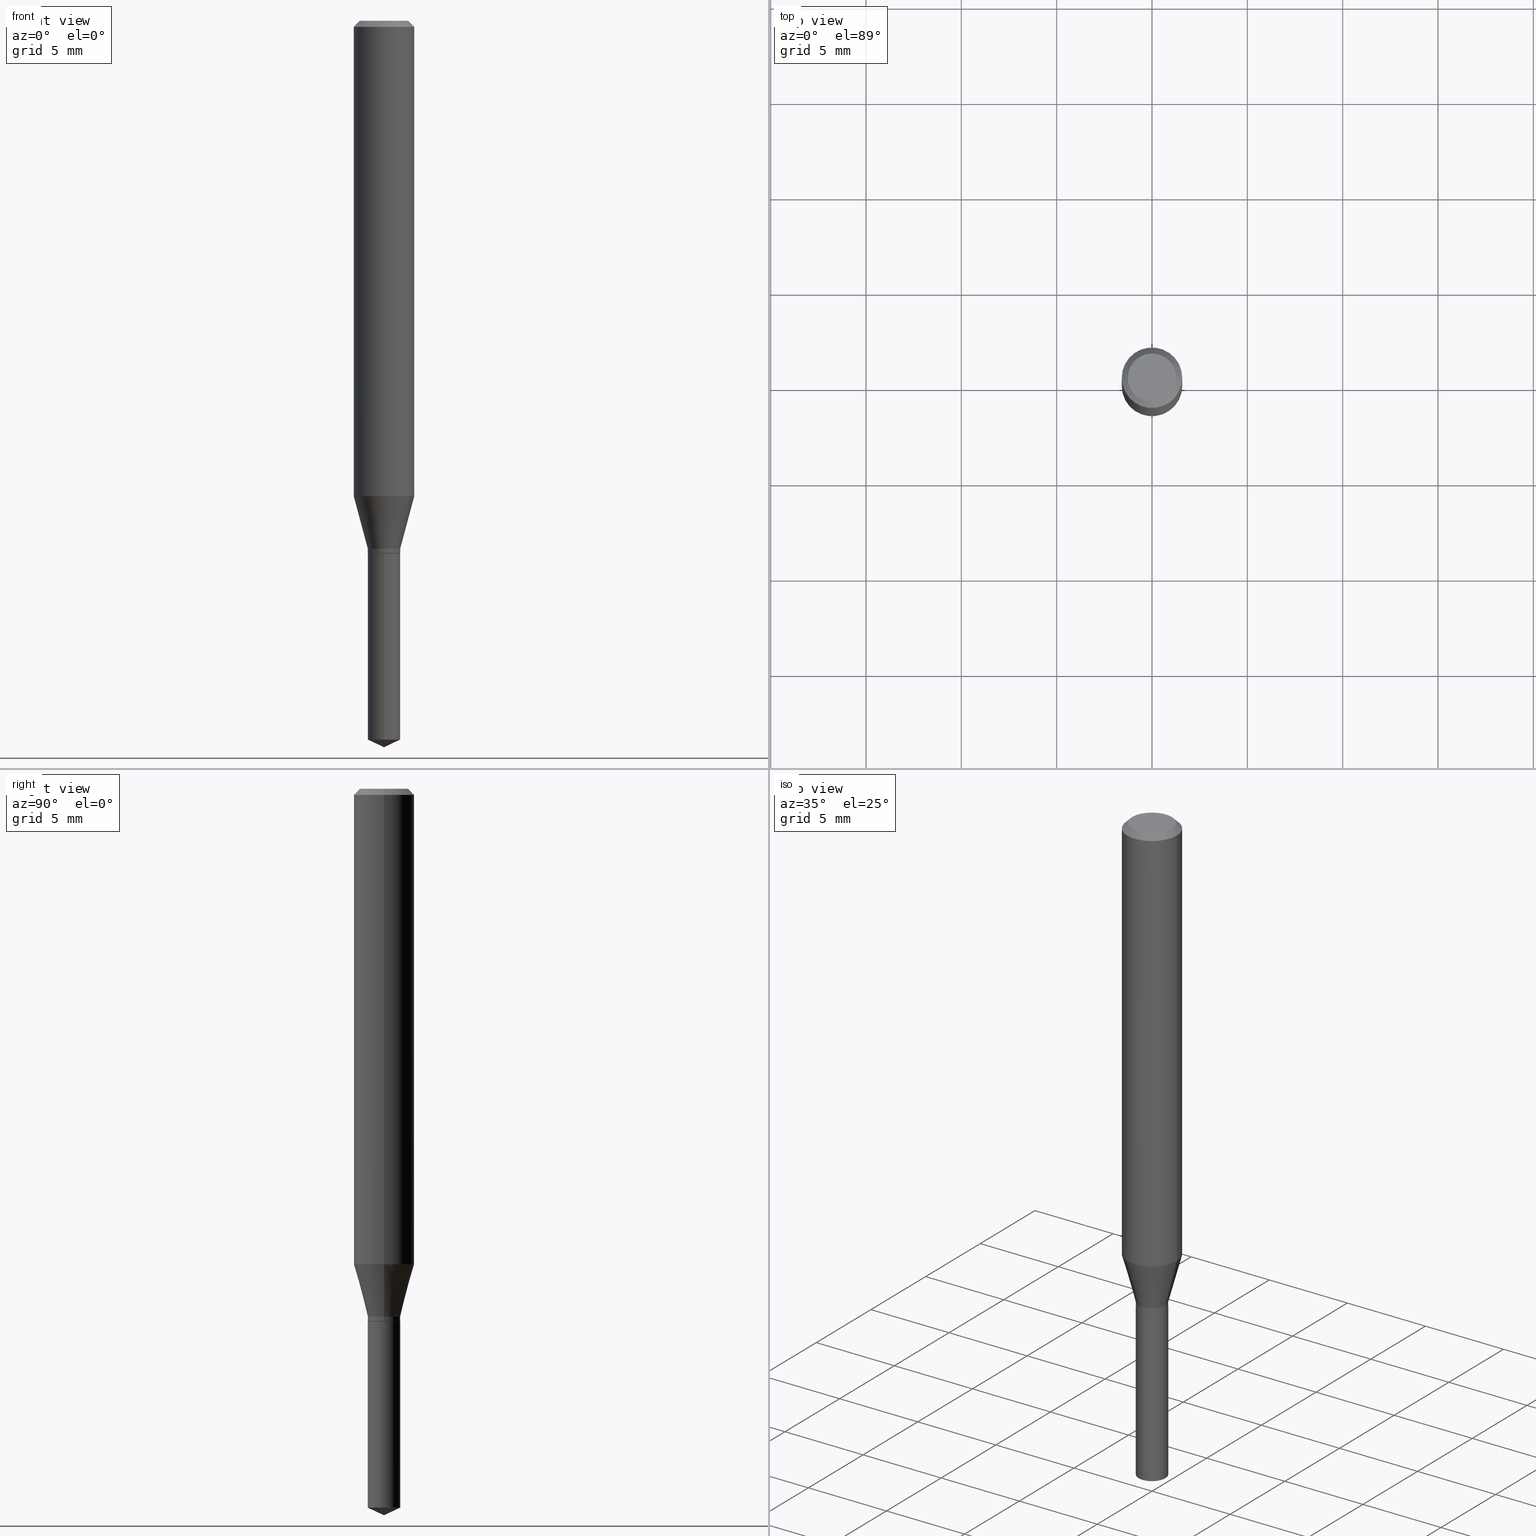
[diagram: canonical four-view strip — front | top / right | iso, engineering-drawing reading convention]
A machine part, canonical four-view strip (front | top / right | iso — engineering-drawing reading convention). The complete STEP part file that produces these views, byte-faithful:
ISO-10303-21;
HEADER;
FILE_DESCRIPTION (( 'STEP AP203' ),
    '1' );
FILE_NAME ('07178.STEP',
    '2024-04-23T19:54:00',
    ( '' ),
    ( '' ),
    'SwSTEP 2.0',
    'SolidWorks 2023',
    '' );
FILE_SCHEMA (( 'CONFIG_CONTROL_DESIGN' ));
ENDSEC;

DATA;
#1 = EDGE_LOOP ( 'NONE', ( #47, #376, #487, #473 ) ) ;
#2 = EDGE_CURVE ( 'NONE', #195, #46, #313, .T. ) ;
#3 = CYLINDRICAL_SURFACE ( 'NONE', #393, 0.03350000000000000200 ) ;
#4 = VERTEX_POINT ( 'NONE', #91 ) ;
#5 = ORIENTED_EDGE ( 'NONE', *, *, #309, .F. ) ;
#6 = ORIENTED_EDGE ( 'NONE', *, *, #31, .T. ) ;
#7 = CARTESIAN_POINT ( 'NONE',  ( 2.690015686803650369E-29, -3.840629472727460101E-15, -1.100000000000000089 ) ) ;
#8 = ORIENTED_EDGE ( 'NONE', *, *, #449, .T. ) ;
#9 = CARTESIAN_POINT ( 'NONE',  ( 3.629975224772868872E-29, -5.182718552888700756E-15, -1.484378693451807507 ) ) ;
#10 = EDGE_LOOP ( 'NONE', ( #93, #8, #191, #416 ) ) ;
#11 = DIRECTION ( 'NONE',  ( 2.445468806185136597E-29, -3.491481338843145583E-15, -1.000000000000000000 ) ) ;
#12 = CARTESIAN_POINT ( 'NONE',  ( 2.665316451861180599E-29, -3.805365511205144152E-15, -1.089900000000000091 ) ) ;
#13 = DIRECTION ( 'NONE',  ( 1.000000000000000000, -6.982962677686258822E-15, 0.000000000000000000 ) ) ;
#14 = AXIS2_PLACEMENT_3D ( 'NONE', #165, #271, #427 ) ;
#15 = AXIS2_PLACEMENT_3D ( 'NONE', #36, #28, #178 ) ;
#16 = ORIENTED_EDGE ( 'NONE', *, *, #316, .T. ) ;
#17 = CARTESIAN_POINT ( 'NONE',  ( 3.056836007731440977E-31, -4.364351673553961068E-17, -0.01250000000000008223 ) ) ;
#18 = CARTESIAN_POINT ( 'NONE',  ( 2.380318164796604470E-16, 0.03349999999999615785, -1.100000000000000089 ) ) ;
#19 = CARTESIAN_POINT ( 'NONE',  ( 2.690015686803650369E-29, -3.840629472727460101E-15, -1.100000000000000089 ) ) ;
#20 = AXIS2_PLACEMENT_3D ( 'NONE', #435, #49, #130 ) ;
#21 = CIRCLE ( 'NONE', #97, 0.03350000000000000200 ) ;
#22 = LINE ( 'NONE', #248, #59 ) ;
#23 = VERTEX_POINT ( 'NONE', #307 ) ;
#24 = ORIENTED_EDGE ( 'NONE', *, *, #462, .F. ) ;
#25 = CARTESIAN_POINT ( 'NONE',  ( 0.03300000000000000155, -4.071067241091106461E-15, -1.100000000000000089 ) ) ;
#26 = FACE_OUTER_BOUND ( 'NONE', #377, .T. ) ;
#27 = AXIS2_PLACEMENT_3D ( 'NONE', #408, #221, #336 ) ;
#28 = DIRECTION ( 'NONE',  ( 0.000000000000000000, 0.000000000000000000, 1.000000000000000000 ) ) ;
#29 = CC_DESIGN_SECURITY_CLASSIFICATION ( #106, ( #249 ) ) ;
#30 = CIRCLE ( 'NONE', #444, 0.03350000000000000200 ) ;
#31 = EDGE_CURVE ( 'NONE', #441, #135, #279, .T. ) ;
#32 = CARTESIAN_POINT ( 'NONE',  ( 0.000000000000000000, 0.000000000000000000, 0.000000000000000000 ) ) ;
#33 = DIRECTION ( 'NONE',  ( -2.445468806185136597E-29, 3.491481338843145583E-15, 1.000000000000000000 ) ) ;
#34 = APPLICATION_PROTOCOL_DEFINITION ( 'international standard', 'config_control_design', 1994, #365 ) ;
#35 = ORIENTED_EDGE ( 'NONE', *, *, #398, .F. ) ;
#36 = CARTESIAN_POINT ( 'NONE',  ( 0.000000000000000000, 0.000000000000000000, 0.000000000000000000 ) ) ;
#37 = MANIFOLD_SOLID_BREP ( 'Body-Move/Copy2[1]', #39 ) ;
#38 = ORIENTED_EDGE ( 'NONE', *, *, #356, .F. ) ;
#39 = CLOSED_SHELL ( 'NONE', ( #371, #281, #63, #242, #139 ) ) ;
#40 = CARTESIAN_POINT ( 'NONE',  ( -0.03350000000000000200, -3.567333694725510772E-15, -1.089900000000000091 ) ) ;
#41 = CC_DESIGN_DATE_AND_TIME_ASSIGNMENT ( #338, #381, ( #90 ) ) ;
#42 = ORIENTED_EDGE ( 'NONE', *, *, #309, .T. ) ;
#43 = CALENDAR_DATE ( 2024, 23, 4 ) ;
#44 = ORIENTED_EDGE ( 'NONE', *, *, #48, .T. ) ;
#45 = FACE_OUTER_BOUND ( 'NONE', #10, .T. ) ;
#46 = VERTEX_POINT ( 'NONE', #463 ) ;
#47 = ORIENTED_EDGE ( 'NONE', *, *, #453, .F. ) ;
#48 = EDGE_CURVE ( 'NONE', #380, #296, #99, .T. ) ;
#49 = DIRECTION ( 'NONE',  ( -2.445468806185136597E-29, 3.491481338843145583E-15, 1.000000000000000000 ) ) ;
#50 = AXIS2_PLACEMENT_3D ( 'NONE', #200, #92, #13 ) ;
#51 = PERSON_AND_ORGANIZATION_ROLE ( 'classification_officer' ) ;
#52 = DIRECTION ( 'NONE',  ( -2.445399690415121530E-29, 3.491580316559632610E-15, 1.000000000000000000 ) ) ;
#53 = CARTESIAN_POINT ( 'NONE',  ( -0.04999999999999999584, 3.709698922520826725E-16, -1.592040838894077649E-18 ) ) ;
#54 = CARTESIAN_POINT ( 'NONE',  ( -0.03300000000000000155, -3.603501142752515631E-15, -1.100000000000000089 ) ) ;
#55 = DIRECTION ( 'NONE',  ( 1.000000000000000000, -6.982962677686259611E-15, 0.000000000000000000 ) ) ;
#56 = EDGE_CURVE ( 'NONE', #46, #195, #64, .T. ) ;
#57 = ORIENTED_EDGE ( 'NONE', *, *, #161, .F. ) ;
#58 = FACE_OUTER_BOUND ( 'NONE', #318, .T. ) ;
#59 = VECTOR ( 'NONE', #375, 39.37007874015748854 ) ;
#60 = APPROVAL_PERSON_ORGANIZATION ( #89, #269, #162 ) ;
#61 = DIRECTION ( 'NONE',  ( -2.445399690415121530E-29, 3.491580316559632610E-15, 1.000000000000000000 ) ) ;
#62 = ADVANCED_FACE ( 'NONE', ( #267 ), #422, .F. ) ;
#63 = ADVANCED_FACE ( 'NONE', ( #431 ), #343, .T. ) ;
#64 = CIRCLE ( 'NONE', #489, 0.03350000000000000200 ) ;
#65 = AXIS2_PLACEMENT_3D ( 'NONE', #215, #61, #401 ) ;
#66 = DIRECTION ( 'NONE',  ( -2.445399690415121810E-29, 3.491580316559632610E-15, 1.000000000000000000 ) ) ;
#67 = DIRECTION ( 'NONE',  ( -2.445468806185136597E-29, 3.491481338843145583E-15, 1.000000000000000000 ) ) ;
#68 = EDGE_LOOP ( 'NONE', ( #24, #145, #391, #38 ) ) ;
#69 = FACE_OUTER_BOUND ( 'NONE', #1, .T. ) ;
#70 = CLOSED_SHELL ( 'NONE', ( #367, #352, #256, #173, #243, #211, #437, #210, #193, #62, #288, #276 ) ) ;
#71 = DIRECTION ( 'NONE',  ( 1.000000000000000000, -6.982962677686265922E-15, 4.875957971899673662E-29 ) ) ;
#72 = DIRECTION ( 'NONE',  ( 6.982962677686265922E-15, 1.000000000000000000, -3.491580316559632610E-15 ) ) ;
#73 = CONICAL_SURFACE ( 'NONE', #353, 0.03300000000000000155, 0.7853981633974141952 ) ;
#74 = DIRECTION ( 'NONE',  ( 1.000000000000000000, -6.982962677686267499E-15, 4.876176775795936353E-29 ) ) ;
#75 = VERTEX_POINT ( 'NONE', #311 ) ;
#76 = CYLINDRICAL_SURFACE ( 'NONE', #153, 0.03350000000000000200 ) ;
#77 = ORIENTED_EDGE ( 'NONE', *, *, #157, .T. ) ;
#78 = APPROVAL_ROLE ( '' ) ;
#79 = PERSON ( 'UNSPECIFIED', 'UNSPECIFIED', 'UNSPECIFIED', ('UNSPECIFIED'), ('UNSPECIFIED'), ('UNSPECIFIED') ) ;
#80 = DIRECTION ( 'NONE',  ( 1.000000000000000000, -6.982962677686259611E-15, 0.000000000000000000 ) ) ;
#81 = ORIENTED_EDGE ( 'NONE', *, *, #462, .T. ) ;
#82 = CONICAL_SURFACE ( 'NONE', #384, 0.03350000000000000200, 0.2617993877991499074 ) ;
#83 = AXIS2_PLACEMENT_3D ( 'NONE', #17, #346, #208 ) ;
#84 = ORIENTED_EDGE ( 'NONE', *, *, #136, .T. ) ;
#85 = APPROVAL_DATE_TIME ( #254, #164 ) ;
#86 = ORIENTED_EDGE ( 'NONE', *, *, #48, .F. ) ;
#87 = CARTESIAN_POINT ( 'NONE',  ( 1.946643104841063088E-47, -2.779290439833033990E-33, -7.960204194457798443E-19 ) ) ;
#88 = DIRECTION ( 'NONE',  ( -2.445399690415121530E-29, 3.491580316559632610E-15, 1.000000000000000000 ) ) ;
#89 = PERSON_AND_ORGANIZATION ( #79, #470 ) ;
#90 = PRODUCT_DEFINITION ( 'UNKNOWN', '', #249, #255 ) ;
#91 = CARTESIAN_POINT ( 'NONE',  ( 0.06250000000000012490, -3.863919491803540319E-15, -0.9816705265805023561 ) ) ;
#92 = DIRECTION ( 'NONE',  ( -2.445468806185136597E-29, 3.491481338843145583E-15, 1.000000000000000000 ) ) ;
#93 = ORIENTED_EDGE ( 'NONE', *, *, #349, .T. ) ;
#94 = DIRECTION ( 'NONE',  ( 1.000000000000000000, -6.982962677686266711E-15, 0.000000000000000000 ) ) ;
#95 = CARTESIAN_POINT ( 'NONE',  ( 2.665316451861180599E-29, -3.805365511205144152E-15, -1.089900000000000091 ) ) ;
#96 = FACE_OUTER_BOUND ( 'NONE', #341, .T. ) ;
#97 = AXIS2_PLACEMENT_3D ( 'NONE', #387, #206, #167 ) ;
#98 = EDGE_CURVE ( 'NONE', #224, #122, #357, .T. ) ;
#99 = CIRCLE ( 'NONE', #433, 0.04999999999999999584 ) ;
#100 = AXIS2_PLACEMENT_3D ( 'NONE', #237, #88, #392 ) ;
#101 =( CONVERSION_BASED_UNIT ( 'INCH', #297 ) LENGTH_UNIT ( ) NAMED_UNIT ( #321 ) );
#102 = CYLINDRICAL_SURFACE ( 'NONE', #362, 0.06250000000000005551 ) ;
#103 = CC_DESIGN_PERSON_AND_ORGANIZATION_ASSIGNMENT ( #186, #488, ( #90 ) ) ;
#104 = VECTOR ( 'NONE', #404, 39.37007874015748143 ) ;
#105 = CALENDAR_DATE ( 2024, 23, 4 ) ;
#106 = SECURITY_CLASSIFICATION ( '', '', #114 ) ;
#107 = EDGE_CURVE ( 'NONE', #289, #465, #203, .T. ) ;
#108 = DIRECTION ( 'NONE',  ( -2.445468806185136597E-29, 3.491481338843145583E-15, 1.000000000000000000 ) ) ;
#109 = ORIENTED_EDGE ( 'NONE', *, *, #453, .T. ) ;
#110 = APPROVAL_DATE_TIME ( #202, #269 ) ;
#111 = CC_DESIGN_PERSON_AND_ORGANIZATION_ASSIGNMENT ( #247, #405, ( #417 ) ) ;
#112 = LINE ( 'NONE', #40, #476 ) ;
#113 = ORIENTED_EDGE ( 'NONE', *, *, #2, .T. ) ;
#114 = SECURITY_CLASSIFICATION_LEVEL ( 'unclassified' ) ;
#115 = DIRECTION ( 'NONE',  ( 1.000000000000000000, -6.982962677686266711E-15, 4.876176775795935232E-29 ) ) ;
#116 = ORIENTED_EDGE ( 'NONE', *, *, #118, .T. ) ;
#117 = LOCAL_TIME ( 15, 54, 0.000000000000000000, #412 ) ;
#118 = EDGE_CURVE ( 'NONE', #480, #4, #144, .T. ) ;
#119 = ORIENTED_EDGE ( 'NONE', *, *, #56, .T. ) ;
#120 = CARTESIAN_POINT ( 'NONE',  ( 0.06250000000000000000, -4.724246415962602840E-16, -0.01250000000000008223 ) ) ;
#121 = CC_DESIGN_DATE_AND_TIME_ASSIGNMENT ( #189, #152, ( #106 ) ) ;
#122 = VERTEX_POINT ( 'NONE', #388 ) ;
#123 = DIRECTION ( 'NONE',  ( 1.000000000000000000, -6.982962677686259611E-15, 0.000000000000000000 ) ) ;
#124 = CARTESIAN_POINT ( 'NONE',  ( 3.056836007731440977E-31, -4.364351673553961068E-17, -0.01250000000000008223 ) ) ;
#125 = DIRECTION ( 'NONE',  ( 6.439704144417007476E-15, 0.9063077870366490485, 0.4226182617407009956 ) ) ;
#126 = AXIS2_PLACEMENT_3D ( 'NONE', #386, #52, #382 ) ;
#127 = CYLINDRICAL_SURFACE ( 'NONE', #344, 0.03350000000000000200 ) ;
#128 =( GEOMETRIC_REPRESENTATION_CONTEXT ( 3 ) GLOBAL_UNCERTAINTY_ASSIGNED_CONTEXT ( ( #150 ) ) GLOBAL_UNIT_ASSIGNED_CONTEXT ( ( #101, #485, #322 ) ) REPRESENTATION_CONTEXT ( 'NONE', 'WORKASPACE' ) );
#129 = CARTESIAN_POINT ( 'NONE',  ( 0.03350000000000000200, -4.039294760907634307E-15, -1.089900000000000091 ) ) ;
#130 = DIRECTION ( 'NONE',  ( 1.000000000000000000, -6.982962677686267499E-15, 4.876176775795936353E-29 ) ) ;
#131 = DIRECTION ( 'NONE',  ( -2.445468806185136597E-29, 3.491481338843145583E-15, 1.000000000000000000 ) ) ;
#132 = PLANE ( 'NONE',  #458 ) ;
#133 = CARTESIAN_POINT ( 'NONE',  ( -2.339292497024630386E-16, -0.03350000000000384615, -1.099999999999999867 ) ) ;
#134 = CONICAL_SURFACE ( 'NONE', #154, 0.03350000000000000200, 0.2617993877991499074 ) ;
#135 = VERTEX_POINT ( 'NONE', #54 ) ;
#136 = EDGE_CURVE ( 'NONE', #195, #4, #205, .T. ) ;
#137 = VECTOR ( 'NONE', #274, 39.37007874015748854 ) ;
#138 = CONICAL_SURFACE ( 'NONE', #50, 0.03300000000000000155, 0.7853981633974141952 ) ;
#139 = ADVANCED_FACE ( 'NONE', ( #354 ), #236, .F. ) ;
#140 = DIRECTION ( 'NONE',  ( -6.982962677686266711E-15, -1.000000000000000000, 0.000000000000000000 ) ) ;
#141 = CARTESIAN_POINT ( 'NONE',  ( 0.03350000000000000200, -4.072812981760527965E-15, -1.099499999999999922 ) ) ;
#142 = CARTESIAN_POINT ( 'NONE',  ( 0.000000000000000000, 0.000000000000000000, 0.000000000000000000 ) ) ;
#143 = COORDINATED_UNIVERSAL_TIME_OFFSET ( 5, 0, .BEHIND. ) ;
#144 = CIRCLE ( 'NONE', #14, 0.06250000000000012490 ) ;
#145 = ORIENTED_EDGE ( 'NONE', *, *, #223, .T. ) ;
#146 = COORDINATED_UNIVERSAL_TIME_OFFSET ( 5, 0, .BEHIND. ) ;
#147 = ORIENTED_EDGE ( 'NONE', *, *, #107, .F. ) ;
#148 = CARTESIAN_POINT ( 'NONE',  ( 2.400644650703955588E-29, -3.427484324448148255E-15, -0.9816705265805023561 ) ) ;
#149 = ORIENTED_EDGE ( 'NONE', *, *, #398, .T. ) ;
#150 = UNCERTAINTY_MEASURE_WITH_UNIT (LENGTH_MEASURE( 1.000000000000000082E-05 ), #101, 'distance_accuracy_value', 'NONE');
#151 = ORIENTED_EDGE ( 'NONE', *, *, #31, .F. ) ;
#152 = DATE_TIME_ROLE ( 'classification_date' ) ;
#153 = AXIS2_PLACEMENT_3D ( 'NONE', #180, #446, #194 ) ;
#154 = AXIS2_PLACEMENT_3D ( 'NONE', #95, #396, #245 ) ;
#155 = DIRECTION ( 'NONE',  ( -1.000000000000000000, 6.982962677686265922E-15, -4.876176775795935793E-29 ) ) ;
#156 = LINE ( 'NONE', #468, #168 ) ;
#157 = EDGE_CURVE ( 'NONE', #289, #259, #22, .T. ) ;
#158 = ORIENTED_EDGE ( 'NONE', *, *, #220, .T. ) ;
#159 = ORIENTED_EDGE ( 'NONE', *, *, #390, .F. ) ;
#160 = CARTESIAN_POINT ( 'NONE',  ( 2.690015686803650369E-29, -3.840629472727460101E-15, -1.100000000000000089 ) ) ;
#161 = EDGE_CURVE ( 'NONE', #46, #480, #112, .T. ) ;
#162 = APPROVAL_ROLE ( '' ) ;
#163 = FACE_OUTER_BOUND ( 'NONE', #225, .T. ) ;
#164 = APPROVAL ( #340, 'UNSPECIFIED' ) ;
#165 = CARTESIAN_POINT ( 'NONE',  ( 2.400644650703955588E-29, -3.427484324448148255E-15, -0.9816705265805023561 ) ) ;
#166 = AXIS2_PLACEMENT_3D ( 'NONE', #87, #232, #155 ) ;
#167 = DIRECTION ( 'NONE',  ( 1.000000000000000000, -6.982962677686259611E-15, 0.000000000000000000 ) ) ;
#168 = VECTOR ( 'NONE', #196, 39.37007874015748143 ) ;
#169 = CARTESIAN_POINT ( 'NONE',  ( 0.03300000000000000155, -4.071067241091106461E-15, -1.100000000000000089 ) ) ;
#170 = DIRECTION ( 'NONE',  ( -2.445399690415121810E-29, 3.491580316559632610E-15, 1.000000000000000000 ) ) ;
#171 = AXIS2_PLACEMENT_3D ( 'NONE', #32, #364, #179 ) ;
#172 = EDGE_LOOP ( 'NONE', ( #415, #478, #301, #5 ) ) ;
#173 = ADVANCED_FACE ( 'NONE', ( #440 ), #82, .T. ) ;
#174 = LINE ( 'NONE', #475, #231 ) ;
#175 = CIRCLE ( 'NONE', #456, 0.03300000000000000155 ) ;
#176 = CIRCLE ( 'NONE', #230, 0.03350000000000000200 ) ;
#177 = LOCAL_TIME ( 15, 54, 0.000000000000000000, #226 ) ;
#178 = DIRECTION ( 'NONE',  ( 1.000000000000000000, 0.000000000000000000, 0.000000000000000000 ) ) ;
#179 = DIRECTION ( 'NONE',  ( 1.000000000000000000, -6.982962677686266711E-15, 4.876176775795935232E-29 ) ) ;
#180 = CARTESIAN_POINT ( 'NONE',  ( 2.690015686803650369E-29, -3.840629472727460101E-15, -1.100000000000000089 ) ) ;
#181 = APPROVAL_STATUS ( 'not_yet_approved' ) ;
#182 = EDGE_LOOP ( 'NONE', ( #113, #185, #277, #253 ) ) ;
#183 = FACE_OUTER_BOUND ( 'NONE', #172, .T. ) ;
#184 = CARTESIAN_POINT ( 'NONE',  ( -0.06250000000000005551, 4.440892098500630106E-16, -3.074334431409318916E-30 ) ) ;
#185 = ORIENTED_EDGE ( 'NONE', *, *, #161, .T. ) ;
#186 = PERSON_AND_ORGANIZATION ( #79, #470 ) ;
#187 = AXIS2_PLACEMENT_3D ( 'NONE', #148, #294, #482 ) ;
#188 = ORIENTED_EDGE ( 'NONE', *, *, #423, .F. ) ;
#189 = DATE_AND_TIME ( #310, #295 ) ;
#190 = CARTESIAN_POINT ( 'NONE',  ( 2.665316451861180599E-29, -3.805365511205144152E-15, -1.089900000000000091 ) ) ;
#191 = ORIENTED_EDGE ( 'NONE', *, *, #479, .F. ) ;
#192 = MANIFOLD_SOLID_BREP ( 'Body-Move/Copy2[2]', #70 ) ;
#193 = ADVANCED_FACE ( 'NONE', ( #26 ), #443, .T. ) ;
#194 = DIRECTION ( 'NONE',  ( -6.982962677686266711E-15, -1.000000000000000000, 4.077385065170542141E-15 ) ) ;
#195 = VERTEX_POINT ( 'NONE', #366 ) ;
#196 = DIRECTION ( 'NONE',  ( -0.7071067811865453523, 2.468850131082234184E-15, -0.7071067811865496822 ) ) ;
#197 = ORIENTED_EDGE ( 'NONE', *, *, #449, .F. ) ;
#198 = LOCAL_TIME ( 15, 54, 0.000000000000000000, #143 ) ;
#199 = DIRECTION ( 'NONE',  ( 1.000000000000000000, -6.982962677686259611E-15, 0.000000000000000000 ) ) ;
#200 = CARTESIAN_POINT ( 'NONE',  ( 2.690015686803650369E-29, -3.840629472727460101E-15, -1.100000000000000089 ) ) ;
#201 = EDGE_CURVE ( 'NONE', #4, #480, #413, .T. ) ;
#202 = DATE_AND_TIME ( #299, #117 ) ;
#203 = LINE ( 'NONE', #347, #399 ) ;
#204 = CARTESIAN_POINT ( 'NONE',  ( 0.06250000000000005551, -4.364351673553921131E-16, 3.047610484872463023E-30 ) ) ;
#205 = LINE ( 'NONE', #129, #137 ) ;
#206 = DIRECTION ( 'NONE',  ( -2.445468806185136597E-29, 3.491481338843145583E-15, 1.000000000000000000 ) ) ;
#207 = DIRECTION ( 'NONE',  ( -2.445468806185136597E-29, 3.491481338843145583E-15, 1.000000000000000000 ) ) ;
#208 = DIRECTION ( 'NONE',  ( 1.000000000000000000, -6.982962677686266711E-15, 0.000000000000000000 ) ) ;
#209 = CIRCLE ( 'NONE', #280, 0.03350000000000000200 ) ;
#210 = ADVANCED_FACE ( 'NONE', ( #370 ), #102, .T. ) ;
#211 = ADVANCED_FACE ( 'NONE', ( #69 ), #3, .T. ) ;
#212 = VECTOR ( 'NONE', #351, 39.37007874015748143 ) ;
#213 = EDGE_CURVE ( 'NONE', #480, #218, #300, .T. ) ;
#214 = FACE_OUTER_BOUND ( 'NONE', #282, .T. ) ;
#215 = CARTESIAN_POINT ( 'NONE',  ( 2.690015686803650369E-29, -3.840629472727460101E-15, -1.100000000000000089 ) ) ;
#216 = CARTESIAN_POINT ( 'NONE',  ( 2.380318164796699134E-16, 0.03349999999999615785, -1.100000000000000089 ) ) ;
#217 = VECTOR ( 'NONE', #66, 39.37007874015748143 ) ;
#218 = VERTEX_POINT ( 'NONE', #252 ) ;
#219 = DATE_AND_TIME ( #105, #198 ) ;
#220 = EDGE_CURVE ( 'NONE', #465, #259, #176, .T. ) ;
#221 = DIRECTION ( 'NONE',  ( 2.445468806185136597E-29, -3.491481338843145583E-15, -1.000000000000000000 ) ) ;
#222 = ORIENTED_EDGE ( 'NONE', *, *, #330, .T. ) ;
#223 = EDGE_CURVE ( 'NONE', #135, #441, #175, .T. ) ;
#224 = VERTEX_POINT ( 'NONE', #216 ) ;
#225 = EDGE_LOOP ( 'NONE', ( #6, #81, #35, #454 ) ) ;
#226 = COORDINATED_UNIVERSAL_TIME_OFFSET ( 5, 0, .BEHIND. ) ;
#227 = ORIENTED_EDGE ( 'NONE', *, *, #213, .F. ) ;
#228 = DIRECTION ( 'NONE',  ( 1.000000000000000000, -6.982962677686258822E-15, 0.000000000000000000 ) ) ;
#229 = PERSON_AND_ORGANIZATION ( #79, #470 ) ;
#230 = AXIS2_PLACEMENT_3D ( 'NONE', #409, #329, #140 ) ;
#231 = VECTOR ( 'NONE', #448, 39.37007874015748143 ) ;
#232 = DIRECTION ( 'NONE',  ( 2.438088387897960049E-29, -3.491481338843145188E-15, -1.000000000000000000 ) ) ;
#233 = DIRECTION ( 'NONE',  ( -6.982962677686266711E-15, -1.000000000000000000, 4.077385065170542141E-15 ) ) ;
#234 = CARTESIAN_POINT ( 'NONE',  ( 2.665316451861180599E-29, -3.805365511205144152E-15, -1.089900000000000091 ) ) ;
#235 = CARTESIAN_POINT ( 'NONE',  ( 2.688792952400557567E-29, -3.838883732058038598E-15, -1.099499999999999922 ) ) ;
#236 = PLANE ( 'NONE',  #425 ) ;
#237 = CARTESIAN_POINT ( 'NONE',  ( -9.260740279983036507E-28, 1.322265303911854087E-13, 37.87007874015748143 ) ) ;
#238 = CARTESIAN_POINT ( 'NONE',  ( 2.690015686803650369E-29, -3.840629472727460101E-15, -1.100000000000000089 ) ) ;
#239 = CC_DESIGN_APPROVAL ( #319, ( #90 ) ) ;
#240 =( LENGTH_UNIT ( ) NAMED_UNIT ( * ) SI_UNIT ( $, .METRE. ) );
#241 = APPROVAL_PERSON_ORGANIZATION ( #442, #319, #328 ) ;
#242 = ADVANCED_FACE ( 'NONE', ( #214 ), #76, .T. ) ;
#243 = ADVANCED_FACE ( 'NONE', ( #251 ), #286, .T. ) ;
#244 = AXIS2_PLACEMENT_3D ( 'NONE', #304, #273, #94 ) ;
#245 = DIRECTION ( 'NONE',  ( 1.000000000000000000, -6.982962677686259611E-15, 0.000000000000000000 ) ) ;
#246 = DIRECTION ( 'NONE',  ( -2.445468806185136597E-29, 3.491481338843145583E-15, 1.000000000000000000 ) ) ;
#247 = PERSON_AND_ORGANIZATION ( #79, #470 ) ;
#248 = CARTESIAN_POINT ( 'NONE',  ( 3.668099535622682155E-29, -5.237370474839448718E-15, -1.500000000000000222 ) ) ;
#249 = PRODUCT_DEFINITION_FORMATION_WITH_SPECIFIED_SOURCE ( 'ANY', '', #417, .NOT_KNOWN. ) ;
#250 = LINE ( 'NONE', #133, #217 ) ;
#251 = FACE_OUTER_BOUND ( 'NONE', #325, .T. ) ;
#252 = CARTESIAN_POINT ( 'NONE',  ( -0.06250000000000000000, -1.291474710741780109E-15, -0.01250000000000008223 ) ) ;
#253 = ORIENTED_EDGE ( 'NONE', *, *, #136, .F. ) ;
#254 = DATE_AND_TIME ( #43, #177 ) ;
#255 = DESIGN_CONTEXT ( 'detailed design', #365, 'design' ) ;
#256 = ADVANCED_FACE ( 'NONE', ( #183 ), #374, .T. ) ;
#257 = ORIENTED_EDGE ( 'NONE', *, *, #486, .F. ) ;
#258 = COORDINATED_UNIVERSAL_TIME_OFFSET ( 5, 0, .BEHIND. ) ;
#259 = VERTEX_POINT ( 'NONE', #419 ) ;
#260 = LOCAL_TIME ( 15, 54, 0.000000000000000000, #146 ) ;
#261 = ORIENTED_EDGE ( 'NONE', *, *, #98, .F. ) ;
#262 = APPROVAL_STATUS ( 'not_yet_approved' ) ;
#263 = DIRECTION ( 'NONE',  ( -2.445399690415121530E-29, 3.491580316559632610E-15, 1.000000000000000000 ) ) ;
#264 = LINE ( 'NONE', #317, #434 ) ;
#265 = EDGE_LOOP ( 'NONE', ( #227, #116, #42, #477 ) ) ;
#266 = PERSON_AND_ORGANIZATION ( #79, #470 ) ;
#267 = FACE_OUTER_BOUND ( 'NONE', #335, .T. ) ;
#268 = FACE_OUTER_BOUND ( 'NONE', #298, .T. ) ;
#269 = APPROVAL ( #262, 'UNSPECIFIED' ) ;
#270 = CONICAL_SURFACE ( 'NONE', #394, 0.06250000000000000000, 0.7853981633974452814 ) ;
#271 = DIRECTION ( 'NONE',  ( -2.445468806185136597E-29, 3.491481338843145583E-15, 1.000000000000000000 ) ) ;
#272 = ADVANCED_BREP_SHAPE_REPRESENTATION ( '07178', ( #37, #192, #15 ), #128 ) ;
#273 = DIRECTION ( 'NONE',  ( -2.445468806185136597E-29, 3.491481338843145583E-15, 1.000000000000000000 ) ) ;
#274 = DIRECTION ( 'NONE',  ( 0.2588190451025211836, 1.565188264969622559E-15, 0.9659258262890679791 ) ) ;
#275 = FACE_OUTER_BOUND ( 'NONE', #305, .T. ) ;
#276 = ADVANCED_FACE ( 'NONE', ( #432 ), #73, .T. ) ;
#277 = ORIENTED_EDGE ( 'NONE', *, *, #201, .F. ) ;
#278 = DIRECTION ( 'NONE',  ( -2.445399690415121530E-29, 3.491580316559632610E-15, 1.000000000000000000 ) ) ;
#279 = CIRCLE ( 'NONE', #284, 0.03300000000000000155 ) ;
#280 = AXIS2_PLACEMENT_3D ( 'NONE', #235, #389, #55 ) ;
#281 = ADVANCED_FACE ( 'NONE', ( #96 ), #314, .T. ) ;
#282 = EDGE_LOOP ( 'NONE', ( #197, #158, #429, #261 ) ) ;
#283 = CARTESIAN_POINT ( 'NONE',  ( -0.03300000000000000155, -3.606150369926626832E-15, -1.100000000000000089 ) ) ;
#284 = AXIS2_PLACEMENT_3D ( 'NONE', #238, #471, #395 ) ;
#285 = APPROVAL_PERSON_ORGANIZATION ( #266, #164, #78 ) ;
#286 = CYLINDRICAL_SURFACE ( 'NONE', #171, 0.03350000000000000200 ) ;
#287 = CARTESIAN_POINT ( 'NONE',  ( 2.690015686803650369E-29, -3.840629472727460101E-15, -1.100000000000000089 ) ) ;
#288 = ADVANCED_FACE ( 'NONE', ( #58 ), #132, .F. ) ;
#289 = VERTEX_POINT ( 'NONE', #460 ) ;
#290 = CARTESIAN_POINT ( 'NONE',  ( 3.893286209682126177E-47, -5.558580879666067980E-33, -1.592040838891559689E-18 ) ) ;
#291 = DIRECTION ( 'NONE',  ( 2.445399690415121250E-29, -3.491580316559632610E-15, -1.000000000000000000 ) ) ;
#292 = ORIENTED_EDGE ( 'NONE', *, *, #330, .F. ) ;
#293 = MECHANICAL_CONTEXT ( 'NONE', #420, 'mechanical' ) ;
#294 = DIRECTION ( 'NONE',  ( -2.445468806185136597E-29, 3.491481338843145583E-15, 1.000000000000000000 ) ) ;
#295 = LOCAL_TIME ( 15, 54, 0.000000000000000000, #258 ) ;
#296 = VERTEX_POINT ( 'NONE', #464 ) ;
#297 = LENGTH_MEASURE_WITH_UNIT ( LENGTH_MEASURE( 0.02539999999999999897 ), #240 );
#298 = EDGE_LOOP ( 'NONE', ( #257, #222, #302, #159 ) ) ;
#299 = CALENDAR_DATE ( 2024, 23, 4 ) ;
#300 = LINE ( 'NONE', #184, #104 ) ;
#301 = ORIENTED_EDGE ( 'NONE', *, *, #397, .F. ) ;
#302 = ORIENTED_EDGE ( 'NONE', *, *, #397, .T. ) ;
#303 = CARTESIAN_POINT ( 'NONE',  ( -9.260740279983036507E-28, 1.322265303911854087E-13, 37.87007874015748143 ) ) ;
#304 = CARTESIAN_POINT ( 'NONE',  ( 3.056836007731440977E-31, -4.364351673553961068E-17, -0.01250000000000008223 ) ) ;
#305 = EDGE_LOOP ( 'NONE', ( #57, #119, #84, #447 ) ) ;
#306 = PERSON_AND_ORGANIZATION_ROLE ( 'creator' ) ;
#307 = CARTESIAN_POINT ( 'NONE',  ( 0.06250000000000000000, -4.800786840909312308E-16, -0.01250000000000008223 ) ) ;
#308 = DIRECTION ( 'NONE',  ( -2.438088387897960049E-29, 3.491481338843145188E-15, 1.000000000000000000 ) ) ;
#309 = EDGE_CURVE ( 'NONE', #4, #23, #342, .T. ) ;
#310 = CALENDAR_DATE ( 2024, 23, 4 ) ;
#311 = CARTESIAN_POINT ( 'NONE',  ( -0.03350000000000000200, -3.584092805151957996E-15, -1.099499999999999922 ) ) ;
#312 = DIRECTION ( 'NONE',  ( -2.445399690415121530E-29, 3.491580316559632610E-15, 1.000000000000000000 ) ) ;
#313 = CIRCLE ( 'NONE', #469, 0.03350000000000000200 ) ;
#314 = CONICAL_SURFACE ( 'NONE', #100, 84.42940631927278616, 1.134464013796308901 ) ;
#315 = DIRECTION ( 'NONE',  ( -6.982962677686268288E-15, -1.000000000000000000, 3.520397390770518557E-15 ) ) ;
#316 = EDGE_CURVE ( 'NONE', #218, #23, #385, .T. ) ;
#317 = CARTESIAN_POINT ( 'NONE',  ( 0.03350000000000000200, -2.339292497024899585E-16, 1.633519219891638449E-30 ) ) ;
#318 = EDGE_LOOP ( 'NONE', ( #151, #339 ) ) ;
#319 = APPROVAL ( #181, 'UNSPECIFIED' ) ;
#320 = LINE ( 'NONE', #169, #407 ) ;
#321 = DIMENSIONAL_EXPONENTS ( 1.000000000000000000, 0.000000000000000000, 0.000000000000000000, 0.000000000000000000, 0.000000000000000000, 0.000000000000000000, 0.000000000000000000 ) ;
#322 =( NAMED_UNIT ( * ) SI_UNIT ( $, .STERADIAN. ) SOLID_ANGLE_UNIT ( ) );
#323 = CC_DESIGN_APPROVAL ( #164, ( #249 ) ) ;
#324 = CC_DESIGN_PERSON_AND_ORGANIZATION_ASSIGNMENT ( #421, #306, ( #249 ) ) ;
#325 = EDGE_LOOP ( 'NONE', ( #149, #109, #368, #188 ) ) ;
#326 = DIRECTION ( 'NONE',  ( -2.445468806185136597E-29, 3.491481338843145583E-15, 1.000000000000000000 ) ) ;
#327 = CIRCLE ( 'NONE', #65, 0.03350000000000000200 ) ;
#328 = APPROVAL_ROLE ( '' ) ;
#329 = DIRECTION ( 'NONE',  ( -2.445399690415121530E-29, 3.491580316559632610E-15, 1.000000000000000000 ) ) ;
#330 = EDGE_CURVE ( 'NONE', #296, #23, #383, .T. ) ;
#331 = ORIENTED_EDGE ( 'NONE', *, *, #98, .T. ) ;
#332 = LINE ( 'NONE', #283, #426 ) ;
#333 = CIRCLE ( 'NONE', #439, 0.04999999999999999584 ) ;
#334 = EDGE_CURVE ( 'NONE', #441, #459, #320, .T. ) ;
#335 = EDGE_LOOP ( 'NONE', ( #44, #450 ) ) ;
#336 = DIRECTION ( 'NONE',  ( -1.000000000000000000, 6.982962677686266711E-15, 0.000000000000000000 ) ) ;
#337 = ORIENTED_EDGE ( 'NONE', *, *, #220, .F. ) ;
#338 = DATE_AND_TIME ( #455, #260 ) ;
#339 = ORIENTED_EDGE ( 'NONE', *, *, #223, .F. ) ;
#340 = APPROVAL_STATUS ( 'not_yet_approved' ) ;
#341 = EDGE_LOOP ( 'NONE', ( #345, #410, #406 ) ) ;
#342 = LINE ( 'NONE', #204, #212 ) ;
#343 = CONICAL_SURFACE ( 'NONE', #457, 84.42940631927278616, 1.134464013796308901 ) ;
#344 = AXIS2_PLACEMENT_3D ( 'NONE', #7, #312, #233 ) ;
#345 = ORIENTED_EDGE ( 'NONE', *, *, #157, .F. ) ;
#346 = DIRECTION ( 'NONE',  ( -2.445468806185136597E-29, 3.491481338843145583E-15, 1.000000000000000000 ) ) ;
#347 = CARTESIAN_POINT ( 'NONE',  ( 3.668252923656895710E-29, -5.237152723863177100E-15, -1.500000000000000222 ) ) ;
#348 = DIRECTION ( 'NONE',  ( -2.445468806185136597E-29, 3.491481338843145583E-15, 1.000000000000000000 ) ) ;
#349 = EDGE_CURVE ( 'NONE', #259, #465, #30, .T. ) ;
#350 = CARTESIAN_POINT ( 'NONE',  ( 3.893286209682126177E-47, -5.558580879666067980E-33, -1.592040838891559689E-18 ) ) ;
#351 = DIRECTION ( 'NONE',  ( -2.445468806185136877E-29, 3.491481338843145188E-15, 1.000000000000000000 ) ) ;
#352 = ADVANCED_FACE ( 'NONE', ( #268 ), #270, .T. ) ;
#353 = AXIS2_PLACEMENT_3D ( 'NONE', #379, #348, #228 ) ;
#354 = FACE_OUTER_BOUND ( 'NONE', #411, .T. ) ;
#355 = DIRECTION ( 'NONE',  ( 0.7071067811865453523, -7.319954787623248157E-15, -0.7071067811865496822 ) ) ;
#356 = EDGE_CURVE ( 'NONE', #75, #459, #21, .T. ) ;
#357 = CIRCLE ( 'NONE', #126, 0.03350000000000000200 ) ;
#358 = CC_DESIGN_APPROVAL ( #269, ( #106 ) ) ;
#359 = ORIENTED_EDGE ( 'NONE', *, *, #479, .T. ) ;
#360 = CARTESIAN_POINT ( 'NONE',  ( 2.380318164796698641E-16, 0.03349999999999481864, -1.484378693451807507 ) ) ;
#361 = PRODUCT_DEFINITION_SHAPE ( 'NONE', 'NONE',  #90 ) ;
#362 = AXIS2_PLACEMENT_3D ( 'NONE', #445, #108, #74 ) ;
#363 = DIRECTION ( 'NONE',  ( -0.2588190451025211836, 5.211531920934547886E-15, 0.9659258262890679791 ) ) ;
#364 = DIRECTION ( 'NONE',  ( -2.445468806185136597E-29, 3.491481338843145583E-15, 1.000000000000000000 ) ) ;
#365 = APPLICATION_CONTEXT ( 'configuration controlled 3d designs of mechanical parts and assemblies' ) ;
#366 = CARTESIAN_POINT ( 'NONE',  ( 0.03350000000000000200, -4.039294760907634307E-15, -1.089900000000000091 ) ) ;
#367 = ADVANCED_FACE ( 'NONE', ( #163 ), #138, .T. ) ;
#368 = ORIENTED_EDGE ( 'NONE', *, *, #2, .F. ) ;
#369 = APPROVAL_DATE_TIME ( #219, #319 ) ;
#370 = FACE_OUTER_BOUND ( 'NONE', #265, .T. ) ;
#371 = ADVANCED_FACE ( 'NONE', ( #45 ), #127, .T. ) ;
#372 = EDGE_LOOP ( 'NONE', ( #147, #77, #337 ) ) ;
#373 = SHAPE_DEFINITION_REPRESENTATION ( #361, #272 ) ;
#374 = CYLINDRICAL_SURFACE ( 'NONE', #20, 0.06250000000000005551 ) ;
#375 = DIRECTION ( 'NONE',  ( -6.328713451373352024E-15, -0.9063077870366461619, 0.4226182617407073239 ) ) ;
#376 = ORIENTED_EDGE ( 'NONE', *, *, #356, .T. ) ;
#377 = EDGE_LOOP ( 'NONE', ( #292, #86, #461, #16 ) ) ;
#378 = PERSON_AND_ORGANIZATION_ROLE ( 'design_supplier' ) ;
#379 = CARTESIAN_POINT ( 'NONE',  ( 2.690015686803650369E-29, -3.840629472727460101E-15, -1.100000000000000089 ) ) ;
#380 = VERTEX_POINT ( 'NONE', #53 ) ;
#381 = DATE_TIME_ROLE ( 'creation_date' ) ;
#382 = DIRECTION ( 'NONE',  ( -6.982962677686266711E-15, -1.000000000000000000, 4.077385065170542141E-15 ) ) ;
#383 = LINE ( 'NONE', #120, #490 ) ;
#384 = AXIS2_PLACEMENT_3D ( 'NONE', #190, #67, #80 ) ;
#385 = CIRCLE ( 'NONE', #83, 0.06250000000000000000 ) ;
#386 = CARTESIAN_POINT ( 'NONE',  ( 2.690015686803650369E-29, -3.840629472727460101E-15, -1.100000000000000089 ) ) ;
#387 = CARTESIAN_POINT ( 'NONE',  ( 2.688792952400557567E-29, -3.838883732058038598E-15, -1.099499999999999922 ) ) ;
#388 = CARTESIAN_POINT ( 'NONE',  ( -2.339292497024630386E-16, -0.03350000000000384615, -1.099999999999999867 ) ) ;
#389 = DIRECTION ( 'NONE',  ( -2.445468806185136597E-29, 3.491481338843145583E-15, 1.000000000000000000 ) ) ;
#390 = EDGE_CURVE ( 'NONE', #380, #218, #156, .T. ) ;
#391 = ORIENTED_EDGE ( 'NONE', *, *, #334, .T. ) ;
#392 = DIRECTION ( 'NONE',  ( -6.982962677686268288E-15, -1.000000000000000000, 3.520397390770518557E-15 ) ) ;
#393 = AXIS2_PLACEMENT_3D ( 'NONE', #142, #33, #115 ) ;
#394 = AXIS2_PLACEMENT_3D ( 'NONE', #124, #11, #424 ) ;
#395 = DIRECTION ( 'NONE',  ( 1.000000000000000000, -6.982962677686258822E-15, 0.000000000000000000 ) ) ;
#396 = DIRECTION ( 'NONE',  ( -2.445468806185136597E-29, 3.491481338843145583E-15, 1.000000000000000000 ) ) ;
#397 = EDGE_CURVE ( 'NONE', #23, #218, #414, .T. ) ;
#398 = EDGE_CURVE ( 'NONE', #459, #75, #209, .T. ) ;
#399 = VECTOR ( 'NONE', #125, 39.37007874015748854 ) ;
#400 = VECTOR ( 'NONE', #170, 39.37007874015748143 ) ;
#401 = DIRECTION ( 'NONE',  ( -6.982962677686266711E-15, -1.000000000000000000, 4.077385065170542141E-15 ) ) ;
#402 = CC_DESIGN_PERSON_AND_ORGANIZATION_ASSIGNMENT ( #229, #51, ( #106 ) ) ;
#403 = DIRECTION ( 'NONE',  ( -0.7071067811865232589, 7.493145998870265808E-15, 0.7071067811865715536 ) ) ;
#404 = DIRECTION ( 'NONE',  ( -2.445468806185136877E-29, 3.491481338843145188E-15, 1.000000000000000000 ) ) ;
#405 = PERSON_AND_ORGANIZATION_ROLE ( 'design_owner' ) ;
#406 = ORIENTED_EDGE ( 'NONE', *, *, #349, .F. ) ;
#407 = VECTOR ( 'NONE', #474, 39.37007874015748854 ) ;
#408 = CARTESIAN_POINT ( 'NONE',  ( 3.056836007731440977E-31, -4.364351673553961068E-17, -0.01250000000000008223 ) ) ;
#409 = CARTESIAN_POINT ( 'NONE',  ( 3.629975224772868872E-29, -5.182718552888700756E-15, -1.484378693451807507 ) ) ;
#410 = ORIENTED_EDGE ( 'NONE', *, *, #107, .T. ) ;
#411 = EDGE_LOOP ( 'NONE', ( #359, #331 ) ) ;
#412 = COORDINATED_UNIVERSAL_TIME_OFFSET ( 5, 0, .BEHIND. ) ;
#413 = CIRCLE ( 'NONE', #187, 0.06250000000000012490 ) ;
#414 = CIRCLE ( 'NONE', #244, 0.06250000000000000000 ) ;
#415 = ORIENTED_EDGE ( 'NONE', *, *, #201, .T. ) ;
#416 = ORIENTED_EDGE ( 'NONE', *, *, #484, .F. ) ;
#417 = PRODUCT ( '07178', '07178', '', ( #293 ) ) ;
#418 = DIRECTION ( 'NONE',  ( -2.445468806185136597E-29, 3.491481338843145583E-15, 1.000000000000000000 ) ) ;
#419 = CARTESIAN_POINT ( 'NONE',  ( -2.339292497024536216E-16, -0.03350000000000518535, -1.484378693451807507 ) ) ;
#420 = APPLICATION_CONTEXT ( 'configuration controlled 3d designs of mechanical parts and assemblies' ) ;
#421 = PERSON_AND_ORGANIZATION ( #79, #470 ) ;
#422 = PLANE ( 'NONE',  #166 ) ;
#423 = EDGE_CURVE ( 'NONE', #459, #195, #264, .T. ) ;
#424 = DIRECTION ( 'NONE',  ( -1.000000000000000000, 6.982962677686266711E-15, 0.000000000000000000 ) ) ;
#425 = AXIS2_PLACEMENT_3D ( 'NONE', #19, #291, #72 ) ;
#426 = VECTOR ( 'NONE', #403, 39.37007874015748854 ) ;
#427 = DIRECTION ( 'NONE',  ( 1.000000000000000000, -6.982962677686264344E-15, 0.000000000000000000 ) ) ;
#428 = DIRECTION ( 'NONE',  ( -6.982962677686266711E-15, -1.000000000000000000, 0.000000000000000000 ) ) ;
#429 = ORIENTED_EDGE ( 'NONE', *, *, #484, .T. ) ;
#430 = DIRECTION ( 'NONE',  ( 1.000000000000000000, -6.982962677686265922E-15, 4.876176775795935793E-29 ) ) ;
#431 = FACE_OUTER_BOUND ( 'NONE', #372, .T. ) ;
#432 = FACE_OUTER_BOUND ( 'NONE', #68, .T. ) ;
#433 = AXIS2_PLACEMENT_3D ( 'NONE', #350, #418, #467 ) ;
#434 = VECTOR ( 'NONE', #472, 39.37007874015748143 ) ;
#435 = CARTESIAN_POINT ( 'NONE',  ( 0.000000000000000000, 0.000000000000000000, 0.000000000000000000 ) ) ;
#436 = CC_DESIGN_PERSON_AND_ORGANIZATION_ASSIGNMENT ( #451, #378, ( #249 ) ) ;
#437 = ADVANCED_FACE ( 'NONE', ( #275 ), #134, .T. ) ;
#438 = CARTESIAN_POINT ( 'NONE',  ( -0.06250000000000012490, -2.983395114598084455E-15, -0.9816705265805023561 ) ) ;
#439 = AXIS2_PLACEMENT_3D ( 'NONE', #290, #326, #71 ) ;
#440 = FACE_OUTER_BOUND ( 'NONE', #182, .T. ) ;
#441 = VERTEX_POINT ( 'NONE', #25 ) ;
#442 = PERSON_AND_ORGANIZATION ( #79, #470 ) ;
#443 = CONICAL_SURFACE ( 'NONE', #27, 0.06250000000000000000, 0.7853981633974452814 ) ;
#444 = AXIS2_PLACEMENT_3D ( 'NONE', #9, #278, #428 ) ;
#445 = CARTESIAN_POINT ( 'NONE',  ( 0.000000000000000000, 0.000000000000000000, 0.000000000000000000 ) ) ;
#446 = DIRECTION ( 'NONE',  ( -2.445399690415121530E-29, 3.491580316559632610E-15, 1.000000000000000000 ) ) ;
#447 = ORIENTED_EDGE ( 'NONE', *, *, #118, .F. ) ;
#448 = DIRECTION ( 'NONE',  ( -2.445468806185136877E-29, 3.491481338843145188E-15, 1.000000000000000000 ) ) ;
#449 = EDGE_CURVE ( 'NONE', #465, #224, #481, .T. ) ;
#450 = ORIENTED_EDGE ( 'NONE', *, *, #486, .T. ) ;
#451 = PERSON_AND_ORGANIZATION ( #79, #470 ) ;
#452 = DIRECTION ( 'NONE',  ( 1.000000000000000000, -6.982962677686258822E-15, 0.000000000000000000 ) ) ;
#453 = EDGE_CURVE ( 'NONE', #75, #46, #174, .T. ) ;
#454 = ORIENTED_EDGE ( 'NONE', *, *, #334, .F. ) ;
#455 = CALENDAR_DATE ( 2024, 23, 4 ) ;
#456 = AXIS2_PLACEMENT_3D ( 'NONE', #287, #246, #452 ) ;
#457 = AXIS2_PLACEMENT_3D ( 'NONE', #303, #263, #315 ) ;
#458 = AXIS2_PLACEMENT_3D ( 'NONE', #160, #308, #430 ) ;
#459 = VERTEX_POINT ( 'NONE', #141 ) ;
#460 = CARTESIAN_POINT ( 'NONE',  ( 3.668099535622682715E-29, -5.237370474839449507E-15, -1.500000000000000222 ) ) ;
#461 = ORIENTED_EDGE ( 'NONE', *, *, #390, .T. ) ;
#462 = EDGE_CURVE ( 'NONE', #135, #75, #332, .T. ) ;
#463 = CARTESIAN_POINT ( 'NONE',  ( -0.03350000000000000200, -3.584092805151957996E-15, -1.089900000000000091 ) ) ;
#464 = CARTESIAN_POINT ( 'NONE',  ( 0.04999999999999999584, -4.077247707424184212E-16, -1.592040838888913461E-18 ) ) ;
#465 = VERTEX_POINT ( 'NONE', #360 ) ;
#466 = PRODUCT_RELATED_PRODUCT_CATEGORY ( 'detail', '', ( #417 ) ) ;
#467 = DIRECTION ( 'NONE',  ( 1.000000000000000000, -6.982962677686265922E-15, 4.875957971899673662E-29 ) ) ;
#468 = CARTESIAN_POINT ( 'NONE',  ( -0.06250000000000000000, 3.927916506198521080E-16, -0.01250000000000008223 ) ) ;
#469 = AXIS2_PLACEMENT_3D ( 'NONE', #12, #207, #199 ) ;
#470 = ORGANIZATION ( 'UNSPECIFIED', 'UNSPECIFIED', '' ) ;
#471 = DIRECTION ( 'NONE',  ( -2.445468806185136597E-29, 3.491481338843145583E-15, 1.000000000000000000 ) ) ;
#472 = DIRECTION ( 'NONE',  ( -2.445468806185136877E-29, 3.491481338843145188E-15, 1.000000000000000000 ) ) ;
#473 = ORIENTED_EDGE ( 'NONE', *, *, #56, .F. ) ;
#474 = DIRECTION ( 'NONE',  ( 0.7071067811865232589, -2.468850131082003836E-15, 0.7071067811865715536 ) ) ;
#475 = CARTESIAN_POINT ( 'NONE',  ( -0.03350000000000000200, 2.380318164796335765E-16, -1.647843255235393487E-30 ) ) ;
#476 = VECTOR ( 'NONE', #363, 39.37007874015748854 ) ;
#477 = ORIENTED_EDGE ( 'NONE', *, *, #316, .F. ) ;
#478 = ORIENTED_EDGE ( 'NONE', *, *, #213, .T. ) ;
#479 = EDGE_CURVE ( 'NONE', #122, #224, #327, .T. ) ;
#480 = VERTEX_POINT ( 'NONE', #438 ) ;
#481 = LINE ( 'NONE', #18, #400 ) ;
#482 = DIRECTION ( 'NONE',  ( 1.000000000000000000, -6.982962677686264344E-15, 0.000000000000000000 ) ) ;
#483 = APPLICATION_PROTOCOL_DEFINITION ( 'international standard', 'config_control_design', 1994, #420 ) ;
#484 = EDGE_CURVE ( 'NONE', #259, #122, #250, .T. ) ;
#485 =( NAMED_UNIT ( * ) PLANE_ANGLE_UNIT ( ) SI_UNIT ( $, .RADIAN. ) );
#486 = EDGE_CURVE ( 'NONE', #296, #380, #333, .T. ) ;
#487 = ORIENTED_EDGE ( 'NONE', *, *, #423, .T. ) ;
#488 = PERSON_AND_ORGANIZATION_ROLE ( 'creator' ) ;
#489 = AXIS2_PLACEMENT_3D ( 'NONE', #234, #131, #123 ) ;
#490 = VECTOR ( 'NONE', #355, 39.37007874015748143 ) ;
ENDSEC;
END-ISO-10303-21;
